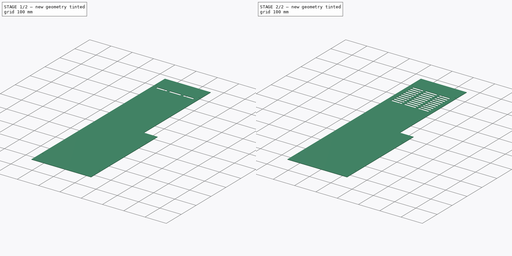
[diagram: build sequence overview — one tinted view per stage of 2, left to right]
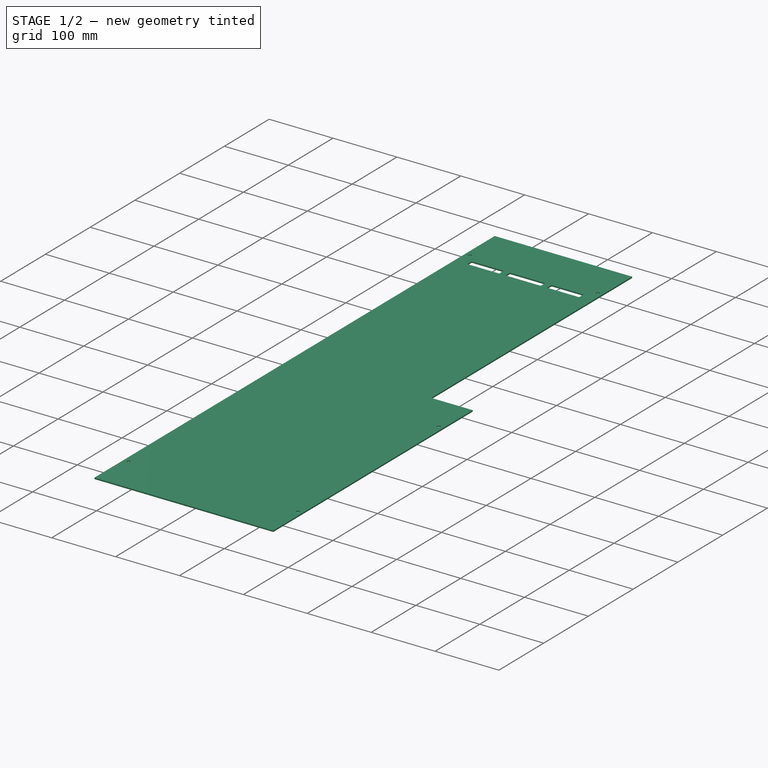
[diagram: stage 1 of 2 — iso view after this stage's code; geometry added in this stage tinted green]
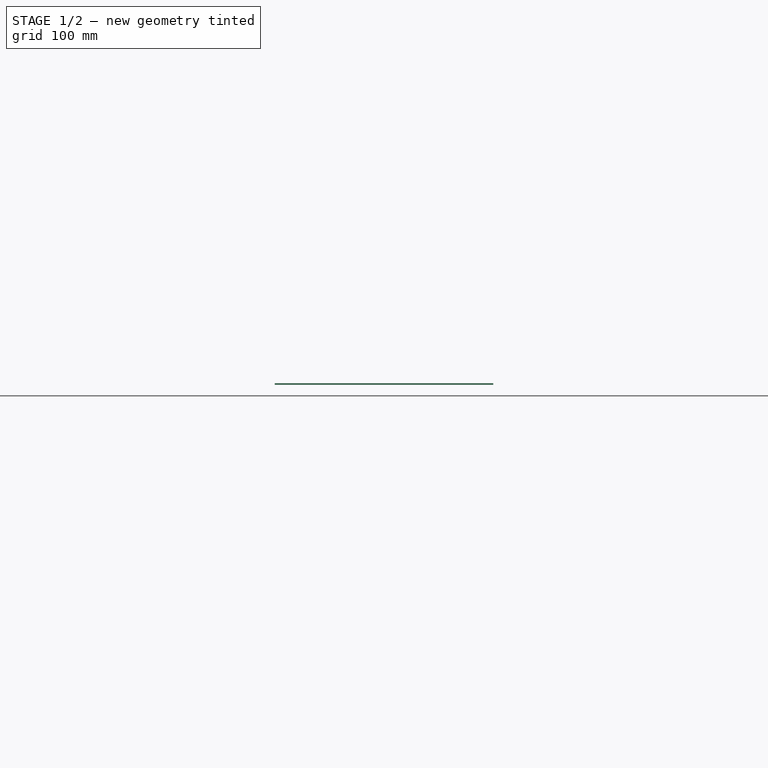
[diagram: stage 1 of 2 — front view after this stage's code; geometry added in this stage tinted green]
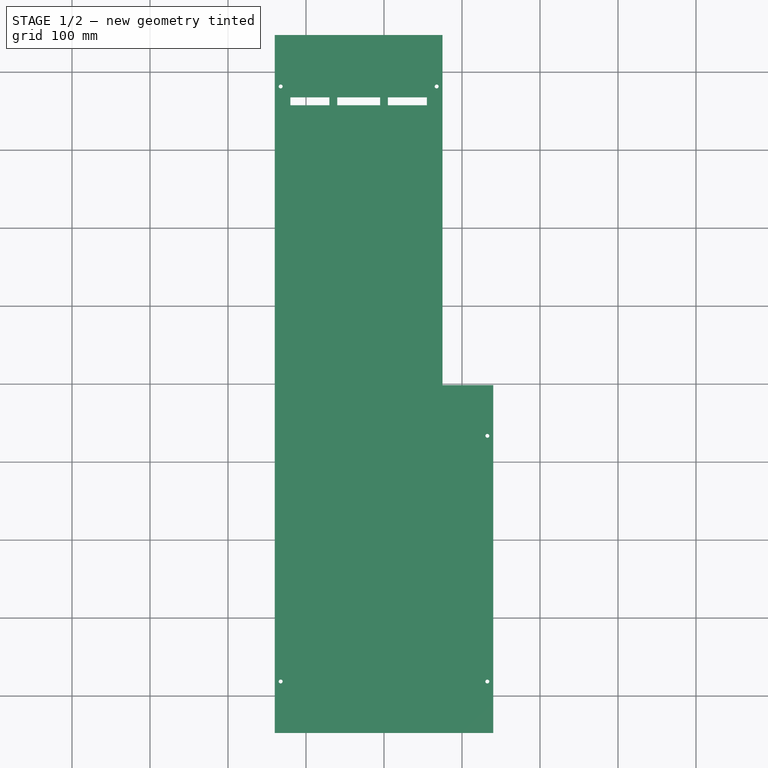
[diagram: stage 1 of 2 — top view after this stage's code; geometry added in this stage tinted green]
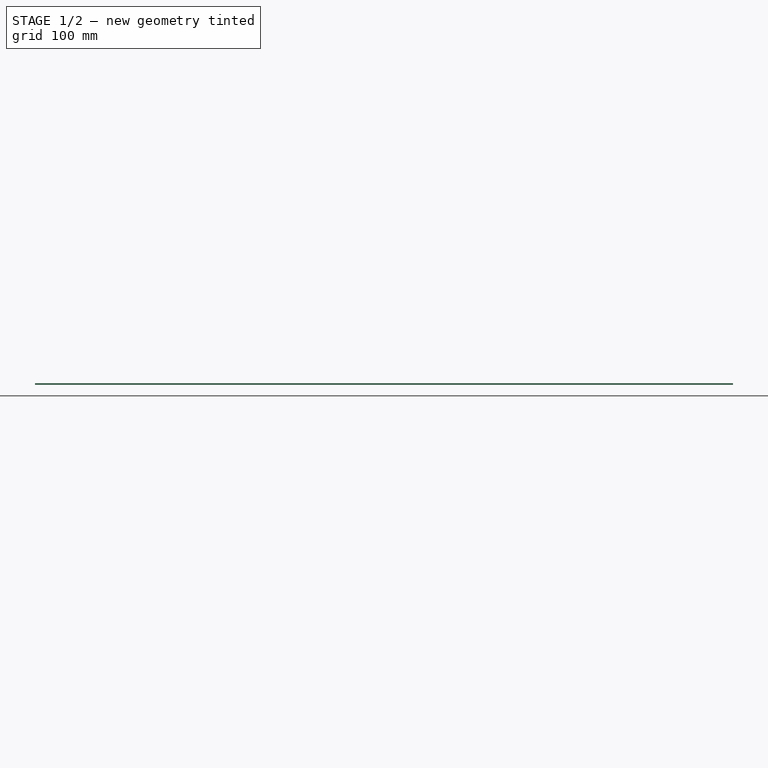
[diagram: stage 1 of 2 — right view after this stage's code; geometry added in this stage tinted green]
FCSTD DOCUMENT  (FreeCAD 0.16R6698 (Git))
Label: Top_Plate
License: All rights reserved
LicenseURL: http://en.wikipedia.org/wiki/All_rights_reserved
objects: Sketcher::SketchObject×2, PartDesign::Pad×1, PartDesign::Pocket×1, PartDesign::LinearPattern×1
note: 7 computed .brp shape members not serialized (recipe doc carries the construction recipe); baked Part::Feature solids carry a one-line shape summary decoded from their .brp

FEATURE [Sketcher::SketchObject] Sketch
  sketch-geometry (11):
    g0: LineSegment StartX=-140 StartY=447.5 StartZ=0 EndX=75 EndY=447.5 EndZ=0
    g1: LineSegment StartX=75 StartY=447.5 StartZ=0 EndX=75 EndY=-1.5 EndZ=0
    g2: LineSegment StartX=140 StartY=-447.5 StartZ=0 EndX=-140 EndY=-447.5 EndZ=0
    g3: LineSegment StartX=-140 StartY=-447.5 StartZ=0 EndX=-140 EndY=447.5 EndZ=0
    g4: LineSegment StartX=75 StartY=-1.5 StartZ=0 EndX=140 EndY=-1.5 EndZ=0
    g5: LineSegment StartX=140 StartY=-1.5 StartZ=0 EndX=140 EndY=-447.5 EndZ=0
    g6: Circle CenterX=-132.5 CenterY=381.5 CenterZ=0 NormalX=0 NormalY=0 NormalZ=1 Radius=2.5
    g7: Circle CenterX=67.5 CenterY=381.5 CenterZ=0 NormalX=0 NormalY=0 NormalZ=1 Radius=2.5
    g8: Circle CenterX=132.5 CenterY=-66.5 CenterZ=0 NormalX=0 NormalY=0 NormalZ=1 Radius=2.5
    g9: Circle CenterX=132.5 CenterY=-381.5 CenterZ=0 NormalX=0 NormalY=0 NormalZ=1 Radius=2.5
    g10: Circle CenterX=-132.5 CenterY=-381.5 CenterZ=0 NormalX=0 NormalY=0 NormalZ=1 Radius=2.5
  constraints (33):
    c: Coincident(g0,g1)
    c: Coincident(g2,g3)
    c: Coincident(g3,g0)
    c: Horizontal(g0)
    c: Horizontal(g2)
    c: Vertical(g1)
    c: Vertical(g3)
    c: Coincident(g4,g5)
    c: Horizontal(g4)
    c: Vertical(g5)
    c: Coincident(g1,g4)
    c: Coincident(g2,g5)
    c: DistanceX(g0,g0) = 215
    c: DistanceX(g2,g2) = 280
    c: DistanceY(g3,g3) = 895
    c: DistanceY(g5,g5) = 446
    c: DistanceY(g-1,g0) = 447.5
    c: DistanceX(g2,g-1) = 140
    c: Radius(g10) = 2.5
    c: Equal(g10,g9)
    c: Equal(g10,g8)
    c: Equal(g10,g7)
    c: Equal(g10,g6)
    c: DistanceY(g6,g0) = 66
    c: DistanceX(g0,g6) = 7.5
    c: DistanceX(g7,g0) = 7.5
    c: DistanceY(g7,g0) = 66
    c: DistanceY(g8,g4) = 65
    c: DistanceX(g8,g4) = 7.5
    c: DistanceX(g9,g2) = 7.5
    c: DistanceY(g2,g9) = 66
    c: DistanceY(g2,g10) = 66
    c: DistanceX(g2,g10) = 7.5
FEATURE [PartDesign::Pad] Pad
  Length = 2
  Length2 = 100
  Sketch = -> Sketch
  Type = 0
FEATURE [Sketcher::SketchObject] Sketch001
  ExternalGeometry = -> [Pad]
  Placement = pos=(0,0,2) rot=(0,0,1;0rad)
  Support = -> Pad [Face13]
  sketch-geometry (12):
    g0: LineSegment StartX=-120 StartY=367.5 StartZ=0 EndX=-70 EndY=367.5 EndZ=0
    g1: LineSegment StartX=55 StartY=367.5 StartZ=0 EndX=55 EndY=357.5 EndZ=0
    g2: LineSegment StartX=55 StartY=357.5 StartZ=0 EndX=5 EndY=357.5 EndZ=0
    g3: LineSegment StartX=-120 StartY=357.5 StartZ=0 EndX=-120 EndY=367.5 EndZ=0
    g4: LineSegment StartX=-70 StartY=367.5 StartZ=0 EndX=-70 EndY=357.5 EndZ=0
    g5: LineSegment StartX=-60 StartY=367.5 StartZ=0 EndX=-60 EndY=357.5 EndZ=0
    g6: LineSegment StartX=-5 StartY=367.5 StartZ=0 EndX=-5 EndY=357.5 EndZ=0
    g7: LineSegment StartX=5 StartY=367.5 StartZ=0 EndX=5 EndY=357.5 EndZ=0
    g8: LineSegment StartX=-60 StartY=367.5 StartZ=0 EndX=-5 EndY=367.5 EndZ=0
    g9: LineSegment StartX=-70 StartY=357.5 StartZ=0 EndX=-120 EndY=357.5 EndZ=0
    g10: LineSegment StartX=5 StartY=367.5 StartZ=0 EndX=55 EndY=367.5 EndZ=0
    g11: LineSegment StartX=-5 StartY=357.5 StartZ=0 EndX=-60 EndY=357.5 EndZ=0
  constraints (34):
    c: Coincident(g10,g1)
    c: Coincident(g1,g2)
    c: Coincident(g9,g3)
    c: Coincident(g3,g0)
    c: Horizontal(g0)
    c: Horizontal(g2)
    c: Vertical(g1)
    c: Vertical(g3)
    c: DistanceY(g0,g-4) = 80
    c: DistanceY(g3,g3) = 10
    c: DistanceX(g-4,g0) = 20
    c: DistanceX(g10,g-3) = 20
    c: Vertical(g4)
    c: Vertical(g5)
    c: PointOnObject(g6,g0)
    c: Vertical(g6)
    c: PointOnObject(g7,g0)
    c: Vertical(g7)
    c: Coincident(g0,g4)
    c: Coincident(g8,g5)
    c: Tangent(g0,g8)
    c: Coincident(g11,g5)
    c: Coincident(g9,g4)
    c: Tangent(g2,g9)
    c: PointOnObject(g8,g6)
    c: PointOnObject(g10,g7)
    c: Tangent(g8,g10)
    c: Coincident(g2,g7)
    c: Coincident(g11,g6)
    c: Tangent(g2,g11)
    c: DistanceX(g6,g7) = 10
    c: DistanceX(g0,g5) = 10
    c: DistanceX(g0,g0) = 50
    c: DistanceX(g10,g10) = 50
FEATURE [PartDesign::Pocket] Pocket
  Length = 5
  Sketch = -> Sketch001
  Type = 0
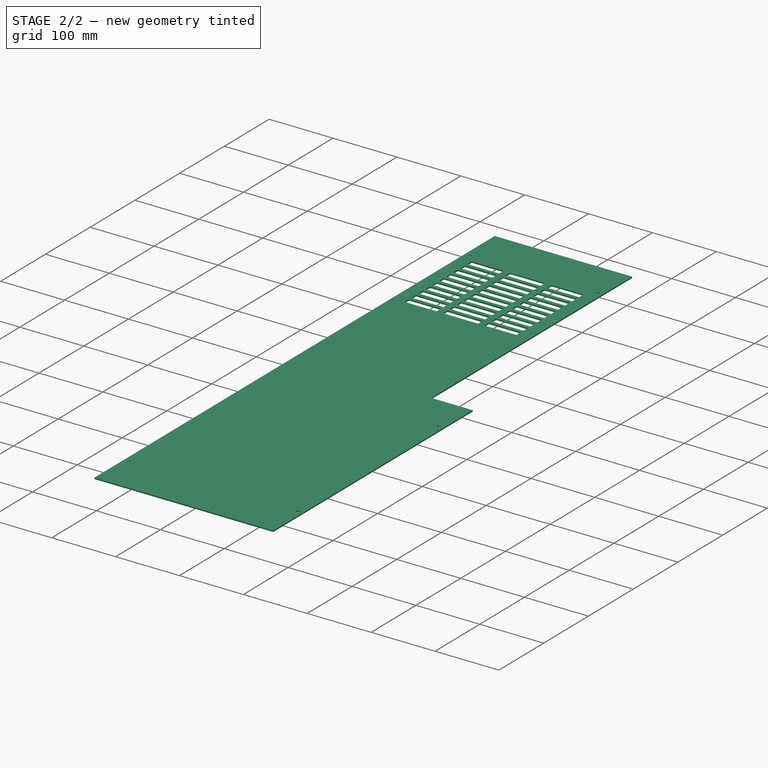
[diagram: stage 2 of 2 — iso view after this stage's code; geometry added in this stage tinted green]
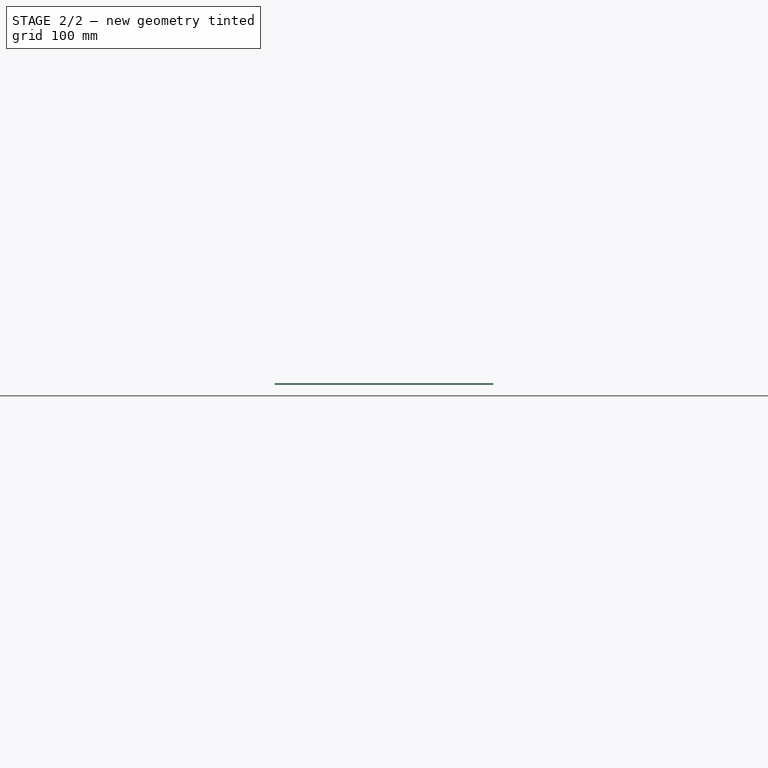
[diagram: stage 2 of 2 — front view after this stage's code; geometry added in this stage tinted green]
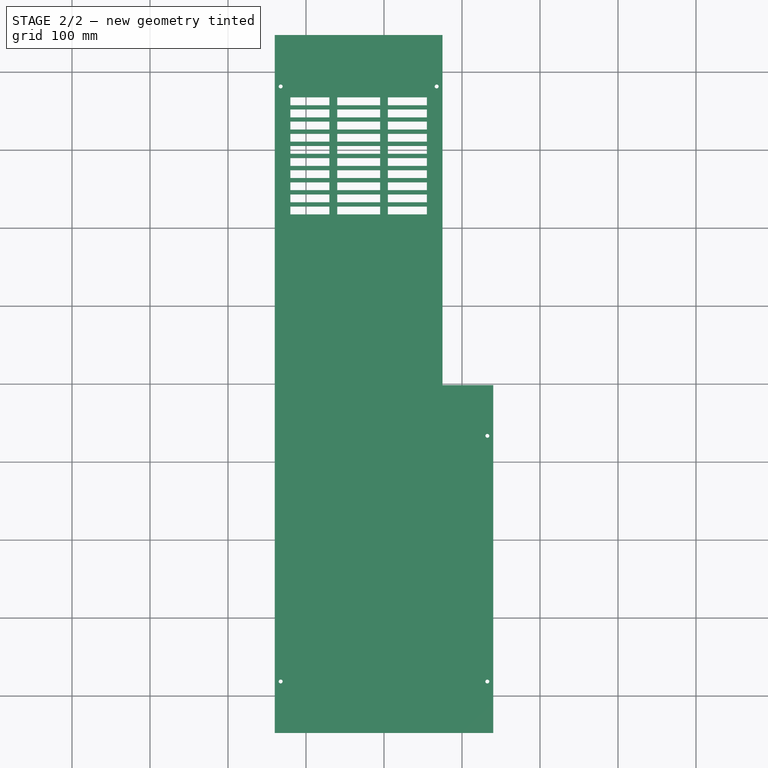
[diagram: stage 2 of 2 — top view after this stage's code; geometry added in this stage tinted green]
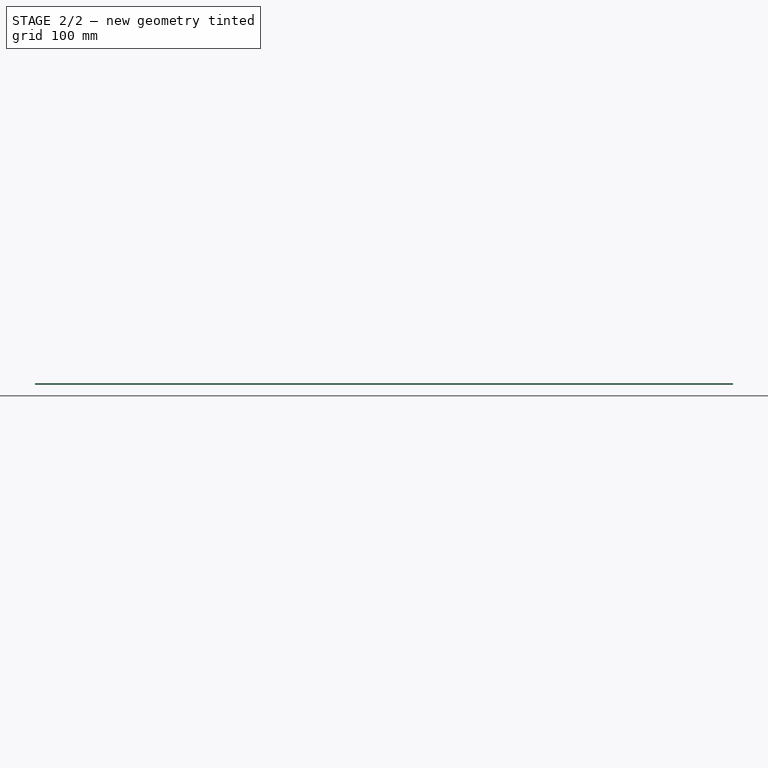
[diagram: stage 2 of 2 — right view after this stage's code; geometry added in this stage tinted green]
FEATURE [PartDesign::LinearPattern] LinearPattern
  Direction = -> Sketch001 [V_Axis]
  Length = 140
  Occurrences = 10
  Originals = -> [Pocket]
  Reversed = true
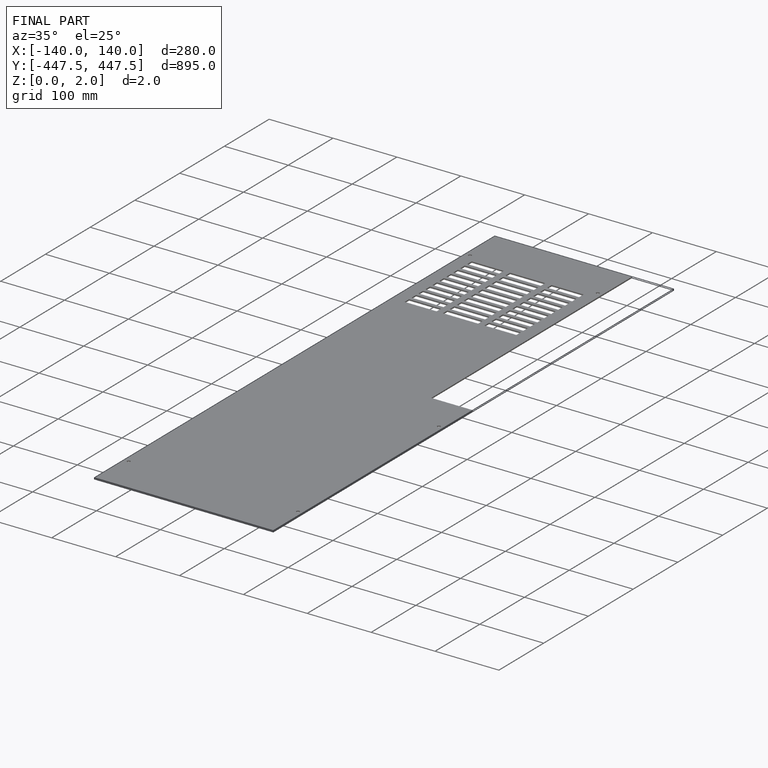
[diagram: finished part — iso view with bounding-box wireframe]
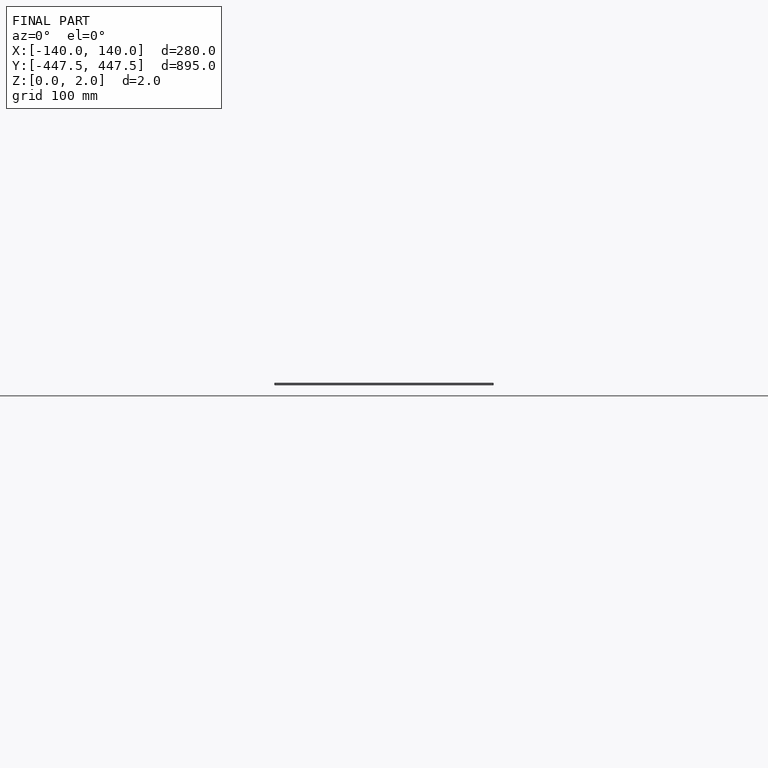
[diagram: finished part — front view with bounding-box wireframe]
